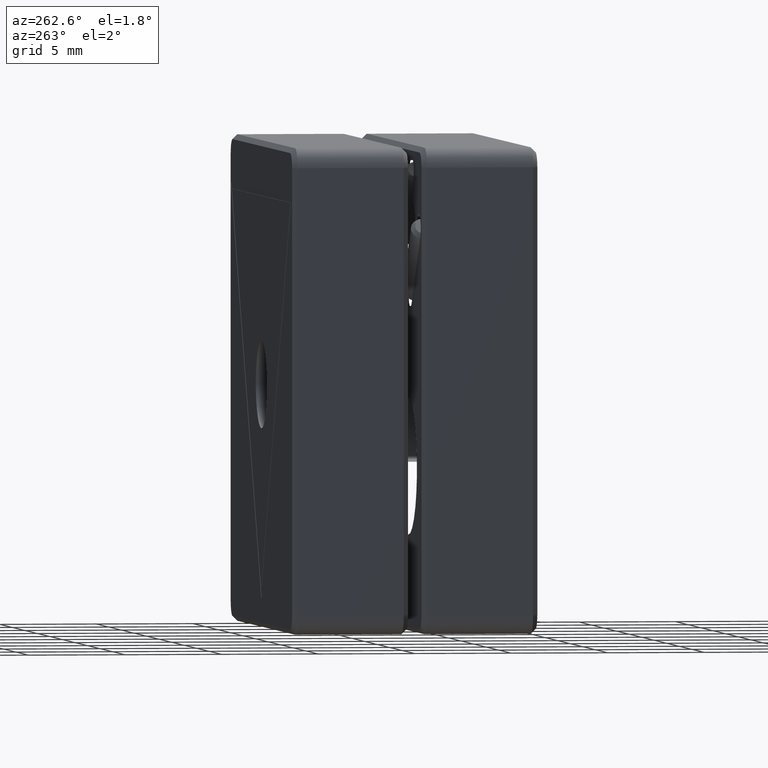
[diagram: clean part render]
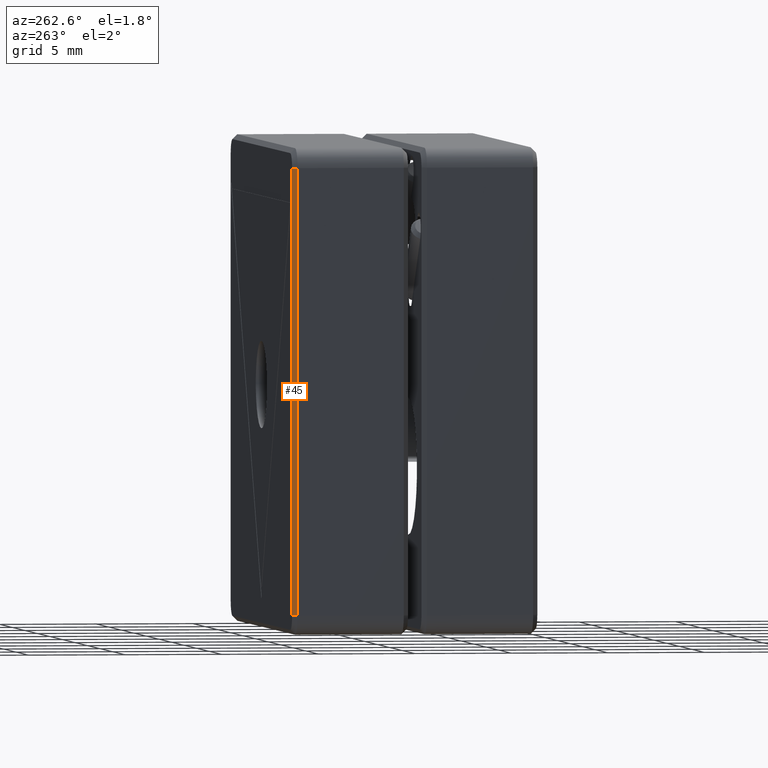
[diagram: same view with one face highlighted and labeled with its STEP entity id]
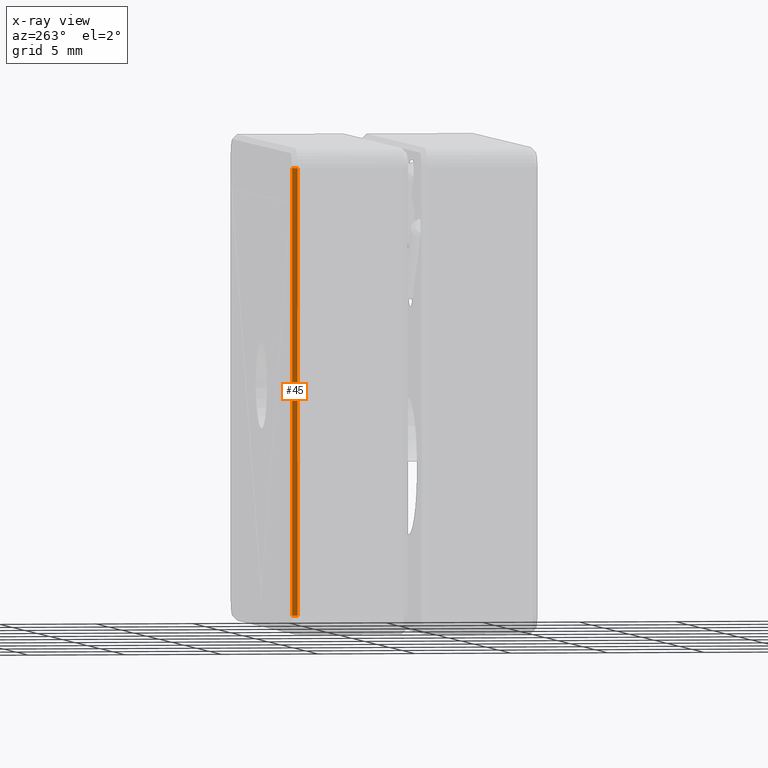
[diagram: x-ray of the same camera — body ghosted, the highlighted face saturated]
A machine part, auxiliary view. The second image highlights one B-rep face of the part: STEP entity #45.
The next image is the same camera in x-ray: the body ghosted, the highlighted face saturated — about 0% of this face is hidden behind the body in this view.
In plain terms, the highlighted planar face has unit normal (0.7071, -0.7071, -0).
Its self-contained STEP definition (entity closure, byte-faithful):
#45 = ADVANCED_FACE ( 'NONE', ( #3202 ), #2332, .F. ) ;
#497 = VERTEX_POINT ( 'NONE', #2030 ) ;
#532 = EDGE_CURVE ( 'NONE', #2968, #497, #3196, .T. ) ;
#722 = CARTESIAN_POINT ( 'NONE',  ( -12.49999999999999645, 9.449958608817592420, -12.50000000000000711 ) ) ;
#825 = ORIENTED_EDGE ( 'NONE', *, *, #1788, .F. ) ;
#849 = VECTOR ( 'NONE', #1154, 1000.000000000000000 ) ;
#969 = ORIENTED_EDGE ( 'NONE', *, *, #3239, .F. ) ;
#1154 = DIRECTION ( 'NONE',  ( 3.088891989411202132E-16, 7.904105642296479936E-20, 1.000000000000000000 ) ) ;
#1203 = EDGE_CURVE ( 'NONE', #497, #2963, #3036, .T. ) ;
#1348 = CARTESIAN_POINT ( 'NONE',  ( -12.49999999999999645, 9.449958608817592420, -12.50000000000000711 ) ) ;
#1406 = DIRECTION ( 'NONE',  ( -0.7071067811865530128, -0.7071067811865420216, 7.373063913862575558E-17 ) ) ;
#1452 = VERTEX_POINT ( 'NONE', #1992 ) ;
#1506 = CARTESIAN_POINT ( 'NONE',  ( -12.49999999999999289, 9.449958608817592420, 11.49999999999999289 ) ) ;
#1546 = ORIENTED_EDGE ( 'NONE', *, *, #1203, .F. ) ;
#1572 = LINE ( 'NONE', #2733, #849 ) ;
#1729 = VECTOR ( 'NONE', #2078, 1000.000000000000114 ) ;
#1788 = EDGE_CURVE ( 'NONE', #2963, #1452, #1572, .T. ) ;
#1822 = CARTESIAN_POINT ( 'NONE',  ( -12.49999999999999645, 9.449958608817592420, -11.50000000000000888 ) ) ;
#1992 = CARTESIAN_POINT ( 'NONE',  ( -12.24999999999999289, 9.699958608817594197, 11.49999999999999289 ) ) ;
#2030 = CARTESIAN_POINT ( 'NONE',  ( -12.49999999999999645, 9.449958608817592420, -11.50000000000000888 ) ) ;
#2078 = DIRECTION ( 'NONE',  ( 0.7071067811865530128, 0.7071067811865420216, -7.373063913862575558E-17 ) ) ;
#2173 = ORIENTED_EDGE ( 'NONE', *, *, #532, .F. ) ;
#2222 = VECTOR ( 'NONE', #1406, 1000.000000000000114 ) ;
#2332 = PLANE ( 'NONE',  #2344 ) ;
#2344 = AXIS2_PLACEMENT_3D ( 'NONE', #1348, #2606, #2868 ) ;
#2450 = VECTOR ( 'NONE', #2586, 1000.000000000000000 ) ;
#2586 = DIRECTION ( 'NONE',  ( -3.088891989411202132E-16, -7.904105642296479936E-20, -1.000000000000000000 ) ) ;
#2606 = DIRECTION ( 'NONE',  ( 0.7071067811865530128, -0.7071067811865420216, -2.183617567395595014E-16 ) ) ;
#2706 = EDGE_LOOP ( 'NONE', ( #969, #825, #1546, #2173 ) ) ;
#2733 = CARTESIAN_POINT ( 'NONE',  ( -12.24999999999999467, 9.699958608817594197, -1.338619466769582155E-14 ) ) ;
#2779 = CARTESIAN_POINT ( 'NONE',  ( -12.24999999999999645, 9.699958608817594197, -11.50000000000000888 ) ) ;
#2868 = DIRECTION ( 'NONE',  ( -3.088891989411202132E-16, -7.904105642296479936E-20, -1.000000000000000000 ) ) ;
#2963 = VERTEX_POINT ( 'NONE', #2779 ) ;
#2968 = VERTEX_POINT ( 'NONE', #1506 ) ;
#3036 = LINE ( 'NONE', #1822, #1729 ) ;
#3143 = LINE ( 'NONE', #3190, #2222 ) ;
#3190 = CARTESIAN_POINT ( 'NONE',  ( -12.24999999999999289, 9.699958608817594197, 11.49999999999999289 ) ) ;
#3196 = LINE ( 'NONE', #722, #2450 ) ;
#3202 = FACE_OUTER_BOUND ( 'NONE', #2706, .T. ) ;
#3239 = EDGE_CURVE ( 'NONE', #1452, #2968, #3143, .T. ) ;